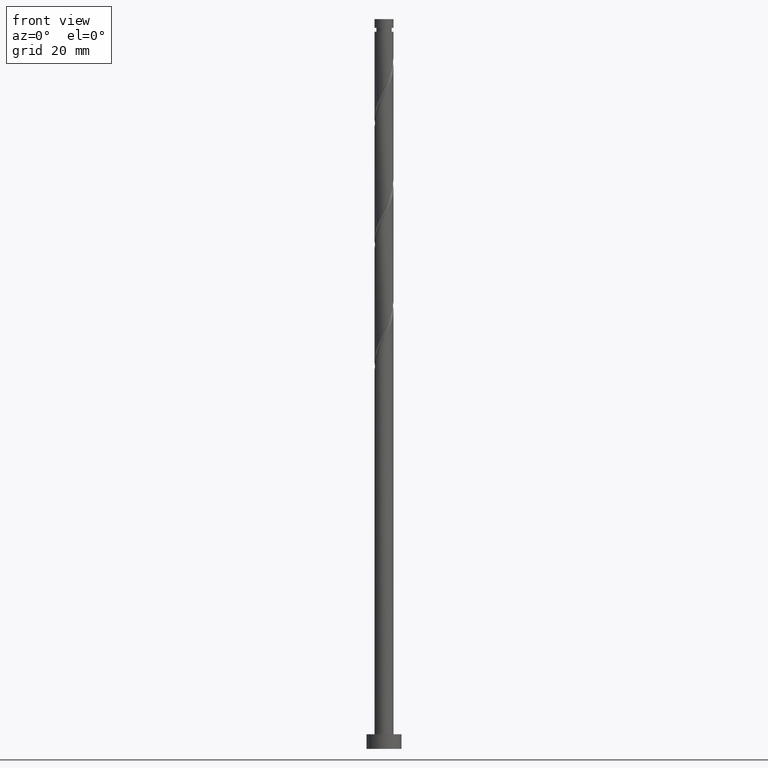
[diagram: clean part render]
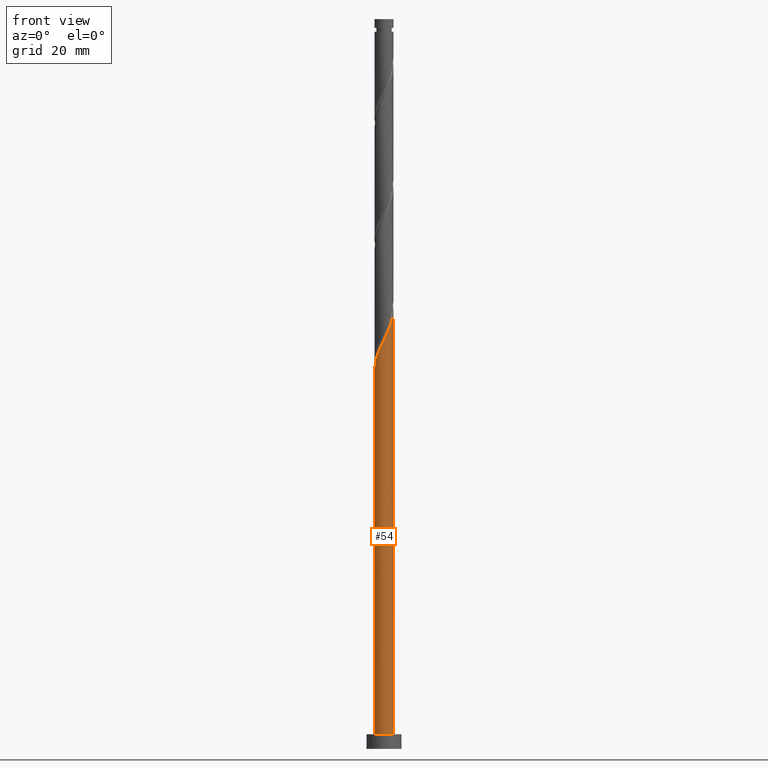
[diagram: same view with one face highlighted and labeled with its STEP entity id]
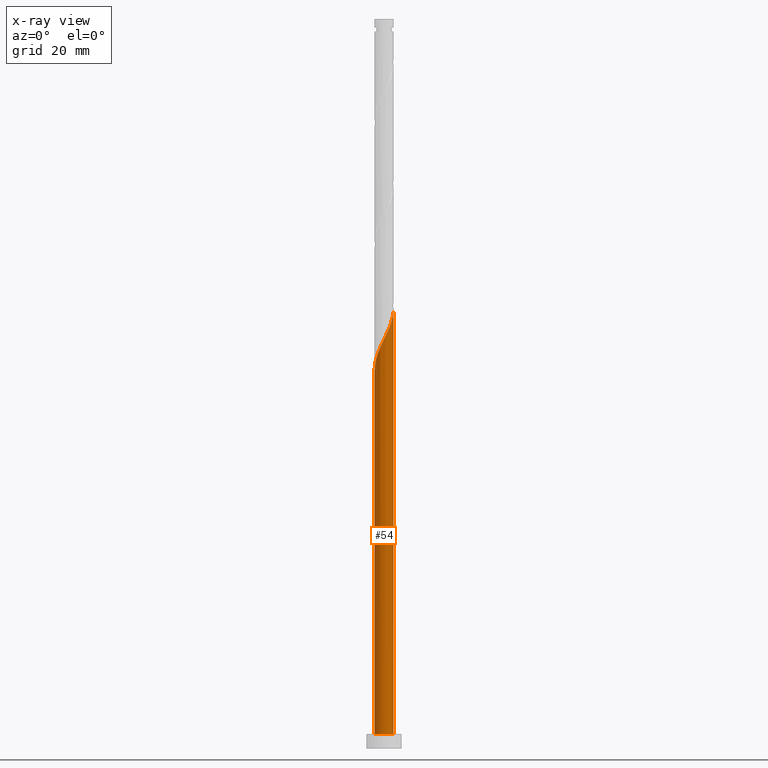
[diagram: x-ray of the same camera — body ghosted, the highlighted face saturated]
A machine part, front view. The second image highlights one B-rep face of the part: STEP entity #54.
The next image is the same camera in x-ray: the body ghosted, the highlighted face saturated — about 0% of this face is hidden behind the body in this view.
In plain terms, the highlighted cylindrical surface (edge-blend (fillet) strip) has radius 3.25 mm, axis along (-0, -0, -1).
Its self-contained STEP definition (entity closure, byte-faithful):
#11 = CARTESIAN_POINT ( 'NONE',  ( -1.969497422358212013, -2.615206681803767808, 135.9154796415516273 ) ) ;
#54 = ADVANCED_FACE ( 'NONE', ( #592 ), #1692, .T. ) ;
#133 = VERTEX_POINT ( 'NONE', #1625 ) ;
#137 = DIRECTION ( 'NONE',  ( -0.000000000000000000, -0.000000000000000000, -1.000000000000000000 ) ) ;
#139 = CARTESIAN_POINT ( 'NONE',  ( -2.748688917919491992, -1.734130684956183055, 133.5116334877054953 ) ) ;
#143 = CARTESIAN_POINT ( 'NONE',  ( 3.207364547986608638, -0.5247024455047721858, 149.5372745133465173 ) ) ;
#153 = CARTESIAN_POINT ( 'NONE',  ( -0.5285562154176384198, -3.230921604182017681, 139.1206078466798033 ) ) ;
#156 = EDGE_LOOP ( 'NONE', ( #383, #1721, #1750, #1209 ) ) ;
#166 = CARTESIAN_POINT ( 'NONE',  ( -0.9074818488964582208, -3.120733358350804121, 138.3193257953977593 ) ) ;
#182 = CARTESIAN_POINT ( 'NONE',  ( -3.250000000000003109, -1.734888869861238066E-15, 129.7798654579675031 ) ) ;
#267 = VERTEX_POINT ( 'NONE', #750 ) ;
#281 = DIRECTION ( 'NONE',  ( -1.000000000000000000, 0.000000000000000000, 0.000000000000000000 ) ) ;
#310 = CARTESIAN_POINT ( 'NONE',  ( -1.286407482375277800, -3.010545112519592781, 137.5180437441157437 ) ) ;
#323 = CARTESIAN_POINT ( 'NONE',  ( -2.959250504853448760, -1.400379425281349732, 132.7103514364234513 ) ) ;
#367 = DIRECTION ( 'NONE',  ( 0.000000000000000000, 0.000000000000000000, 1.000000000000000000 ) ) ;
#377 = CARTESIAN_POINT ( 'NONE',  ( 0.000000000000000000, 0.000000000000000000, 5.000000000000000000 ) ) ;
#383 = ORIENTED_EDGE ( 'NONE', *, *, #1425, .F. ) ;
#415 = CARTESIAN_POINT ( 'NONE',  ( 0.000000000000000000, 0.000000000000000000, 250.0000000000000000 ) ) ;
#433 = CARTESIAN_POINT ( 'NONE',  ( -1.627952452366745018, -2.812875897161679628, 136.7167616928336997 ) ) ;
#541 = CIRCLE ( 'NONE', #1074, 3.250000000000000444 ) ;
#554 = CARTESIAN_POINT ( 'NONE',  ( 2.358742199564651365, -2.270365900294405659, 145.5308642569362974 ) ) ;
#559 = VERTEX_POINT ( 'NONE', #913 ) ;
#562 = VECTOR ( 'NONE', #1233, 1000.000000000000000 ) ;
#592 = FACE_OUTER_BOUND ( 'NONE', #156, .T. ) ;
#670 = VERTEX_POINT ( 'NONE', #1764 ) ;
#671 = LINE ( 'NONE', #949, #562 ) ;
#694 = CARTESIAN_POINT ( 'NONE',  ( 1.746867314480051059, -2.768877149825894612, 143.9283001543721809 ) ) ;
#695 = CARTESIAN_POINT ( 'NONE',  ( 3.250000000000003109, 1.286210713862641960E-15, 150.6131987913008459 ) ) ;
#711 =( BOUNDED_CURVE ( )  B_SPLINE_CURVE ( 2, ( #182, #1296, #1738, #1418, #1599, #323, #139, #1717, #1276, #11, #433, #310, #166, #153, #1023, #733, #1726, #886, #1443, #694, #1822, #554, #1126, #1690, #990, #851, #143, #848, #695 ),
 .UNSPECIFIED., .F., .T. ) 
 B_SPLINE_CURVE_WITH_KNOTS ( ( 3, 2, 2, 2, 2, 2, 2, 2, 2, 2, 2, 2, 2, 2, 3 ),
 ( 0.05452716259738323717, 0.05769230769230770939, 0.06730769230769229061, 0.07692307692307687184, 0.08653846153846156408, 0.09615384615384614531, 0.1057692307692307265, 0.1153846153846154188, 0.1250000000000000000, 0.1346153846153845812, 0.1442307692307692735, 0.1538461538461538547, 0.1634615384615384359, 0.1730769230769231282, 0.1795271625973831886 ),
 .UNSPECIFIED. ) 
 CURVE ( )  GEOMETRIC_REPRESENTATION_ITEM ( )  RATIONAL_B_SPLINE_CURVE ( ( 0.9061636035682920642, 0.9069090390690808245, 0.9090909090909373713, 0.9024626128164408012, 0.9090909090909373713, 0.9024626128164408012, 0.9090909090909373713, 0.9024626128164408012, 0.9090909090909373713, 0.9024626128164408012, 0.9090909090909373713, 0.9024626128164408012, 0.9090909090909373713, 0.9024626128164408012, 0.9090909090909373713, 0.9024626128164408012, 0.9090909090909373713, 0.9024626128164408012, 0.9090909090909373713, 0.9024626128164408012, 0.9090909090909373713, 0.9024626128164408012, 0.9090909090909373713, 0.9024626128164408012, 0.9090909090909373713, 0.9024626128164408012, 0.9090909090909373713, 0.9046444828382974590, 0.9061636035682920642 ) ) 
 REPRESENTATION_ITEM ( '' )  );
#733 = CARTESIAN_POINT ( 'NONE',  ( 0.2600128175564029864, -3.263528676131572936, 140.7231719492439481 ) ) ;
#750 = CARTESIAN_POINT ( 'NONE',  ( -3.250000000000000444, 0.000000000000000000, 5.000000000000000000 ) ) ;
#848 = CARTESIAN_POINT ( 'NONE',  ( 3.250000000000003553, -0.2640834252454032915, 150.0734980539525054 ) ) ;
#851 = CARTESIAN_POINT ( 'NONE',  ( 3.143654136451849102, -0.9141470098380763964, 148.7359924620644733 ) ) ;
#886 = CARTESIAN_POINT ( 'NONE',  ( 1.033470850682204567, -3.106471323868436052, 142.3257360518080361 ) ) ;
#913 = CARTESIAN_POINT ( 'NONE',  ( -3.250000000000003553, -1.734888869861238066E-15, 129.7798654579675031 ) ) ;
#949 = CARTESIAN_POINT ( 'NONE',  ( -3.250000000000000444, 0.000000000000000000, 250.0000000000000000 ) ) ;
#951 = DIRECTION ( 'NONE',  ( -0.000000000000000000, -0.000000000000000000, -1.000000000000000000 ) ) ;
#990 = CARTESIAN_POINT ( 'NONE',  ( 2.988594849070723924, -1.277028123460074660, 147.9347104107823725 ) ) ;
#1023 = CARTESIAN_POINT ( 'NONE',  ( -0.1342716989306176611, -3.247225140156793977, 139.9218898979619325 ) ) ;
#1074 = AXIS2_PLACEMENT_3D ( 'NONE', #377, #367, #1373 ) ;
#1126 = CARTESIAN_POINT ( 'NONE',  ( 2.596138880627125722, -1.955137568688240179, 146.3321463082183698 ) ) ;
#1209 = ORIENTED_EDGE ( 'NONE', *, *, #1404, .T. ) ;
#1233 = DIRECTION ( 'NONE',  ( -0.000000000000000000, -0.000000000000000000, -1.000000000000000000 ) ) ;
#1276 = CARTESIAN_POINT ( 'NONE',  ( -2.253812376671873619, -2.341544313217391871, 135.1141975902695833 ) ) ;
#1280 = VECTOR ( 'NONE', #951, 1000.000000000000000 ) ;
#1296 = CARTESIAN_POINT ( 'NONE',  ( -3.250000000000004441, -0.1292626735944938932, 130.0440363736004201 ) ) ;
#1297 = EDGE_CURVE ( 'NONE', #559, #670, #711, .T. ) ;
#1373 = DIRECTION ( 'NONE',  ( 1.000000000000000000, 0.000000000000000000, 0.000000000000000000 ) ) ;
#1404 = EDGE_CURVE ( 'NONE', #267, #133, #541, .T. ) ;
#1418 = CARTESIAN_POINT ( 'NONE',  ( -3.208392795817203602, -0.6514919439064299489, 131.1077873338593633 ) ) ;
#1425 = EDGE_CURVE ( 'NONE', #670, #133, #1779, .T. ) ;
#1443 = CARTESIAN_POINT ( 'NONE',  ( 1.390169082581127480, -2.937674236847164888, 143.1270181030901369 ) ) ;
#1479 = AXIS2_PLACEMENT_3D ( 'NONE', #415, #137, #281 ) ;
#1599 = CARTESIAN_POINT ( 'NONE',  ( -3.083821650335325515, -1.025935684593889397, 131.9090693851413789 ) ) ;
#1625 = CARTESIAN_POINT ( 'NONE',  ( 3.250000000000000444, 3.980102097228898231E-16, 5.000000000000000000 ) ) ;
#1645 = CARTESIAN_POINT ( 'NONE',  ( 3.250000000000000444, 3.980102097228898231E-16, 250.0000000000000000 ) ) ;
#1690 = CARTESIAN_POINT ( 'NONE',  ( 2.833535561689601412, -1.639909237082075810, 147.1334283595004138 ) ) ;
#1692 = CYLINDRICAL_SURFACE ( 'NONE', #1479, 3.250000000000000444 ) ;
#1717 = CARTESIAN_POINT ( 'NONE',  ( -2.538127330985534780, -2.067881944631017710, 134.3129155389875677 ) ) ;
#1721 = ORIENTED_EDGE ( 'NONE', *, *, #1297, .F. ) ;
#1726 = CARTESIAN_POINT ( 'NONE',  ( 0.6467418341193043041, -3.185000000000004050, 141.5244540005259921 ) ) ;
#1735 = EDGE_CURVE ( 'NONE', #559, #267, #671, .T. ) ;
#1738 = CARTESIAN_POINT ( 'NONE',  ( -3.239733877669285445, -0.2581170313674804317, 130.3065052825772909 ) ) ;
#1750 = ORIENTED_EDGE ( 'NONE', *, *, #1735, .T. ) ;
#1764 = CARTESIAN_POINT ( 'NONE',  ( 3.250000000000003553, 1.286210713862641960E-15, 150.6131987913008174 ) ) ;
#1779 = LINE ( 'NONE', #1645, #1280 ) ;
#1822 = CARTESIAN_POINT ( 'NONE',  ( 2.052804757022351545, -2.519621525060148581, 144.7295822056541681 ) ) ;